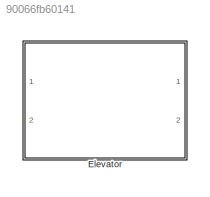
MODEL slx_90066fb60141
KIND library
CONFIG AbsTol = auto
CONFIG EnableMultiTasking = on
CONFIG FixedStep = 1
CONFIG MaxStep = auto
CONFIG MinStep = auto
CONFIG RelTol = 1e-3
CONFIG SampleTimeConstraint = Unconstrained
CONFIG Solver = FixedStepDiscrete
CONFIG SolverName = FixedStepDiscrete
CONFIG StartTime = 0.0
CONFIG StopTime = 10.0
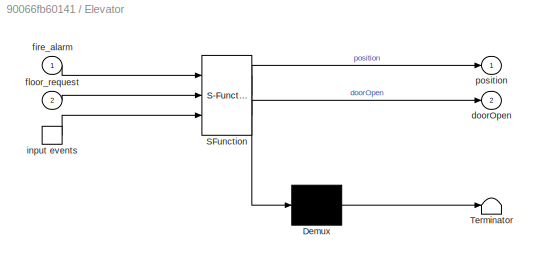
BLOCK [SubSystem] Elevator
  ErrorFcn = Stateflow.Translate.translate
  PermitHierarchicalResolution = ExplicitOnly
  Ports = [2, 2, 0, 1]
  RequestExecContextInheritance = off
  SFBlockType = Chart
  TreatAsAtomicUnit = on
  Variant = off
BLOCK [Demux] Elevator/ Demux 
  Outputs = 1
  Ports = [1, 1]
BLOCK [S-Function] Elevator/ SFunction 
  EnableBusSupport = off
  FunctionName = sf_sfun
  PortCounts = [3 3]
  Ports = [3, 3]
  SFcnIsStateOwnerBlock = off
  SFunctionDeploymentMode = off
  Tag = Stateflow S-Function sf_elevator_lib 2
BLOCK [Terminator] Elevator/ Terminator 
BLOCK [TriggerPort] Elevator/ input events 
  Ports = [0, 1]
  ShowOutputPort = on
  StatesWhenEnabling = held
  TriggerType = either
  VariantControl = (inherit)
BLOCK [Outport] Elevator/doorOpen
  IconDisplay = Port number
  Port = 2
BLOCK [Inport] Elevator/fire_alarm
  IconDisplay = Port number
BLOCK [Inport] Elevator/floor_request
  IconDisplay = Port number
  Port = 2
BLOCK [Outport] Elevator/position
  IconDisplay = Port number
CHART Elevator states=16 transitions=69
  STATE_LABEL 'Elevator'
  STATE_LABEL 'PickUpDropOff\nen: Main_deregister(cur_floor);\n      deregister(cur_floor);\n      direction = MOVE_IDLE;\n      doorOpen = 1;\n\ndu: Main_deregister(cur_floor);\n      deregister(cur_floor);\n\nex: doorOpen = 0;'
  STATE_LABEL 'Stopped'
  STATE_LABEL '[fire_alarm]{status = EMERG;\nresetTheElevatorCar();}\n/* Resets the timeout counter */'
  STATE_LABEL 'Idle\nen: status = IDLE;\nex: status = BUSY;'
  STATE_LABEL 'MoveToTask\ndu: move_to(task_queue[0]);'
  STATE_LABEL 'CAR_CALL  {register(floor_request);}'
  STATE_LABEL '{doorOpen = 0;}'
  STATE_LABEL 'after(TIME_OUT, CLOCK)'
  STATE_LABEL '[task_queue[0]]'
  STATE_LABEL '[task_queue[0]]'
  STATE_LABEL '[should_stop()]'
  STATE_LABEL 'PickUpDropOff\nen: Main_deregister(cur_floor);\n      deregister(cur_floor);\n      direction = MOVE_IDLE;\n      doorOpen = 1;\n\ndu: Main_deregister(cur_floor);\n      deregister(cur_floor);\n\nex: doorOpen = 0;'
  STATE_LABEL 'Stopped'
  STATE_LABEL '[fire_alarm]{status = EMERG;\nresetTheElevatorCar();}\n/* Resets the timeout counter */'
  STATE_LABEL 'Stopped'
  STATE_LABEL 'Idle\nen: status = IDLE;\nex: status = BUSY;'
  STATE_LABEL 'MoveToTask\ndu: move_to(task_queue[0]);'
  STATE_LABEL 'move_to(destination)'
  STATE_LABEL '{\n/* Move up */\nmove_up = (destination - position > ERR_TOR);\n}'
  STATE_LABEL '{\n/* Move down */\nmove_down = (position - destination > ERR_TOR);\n}'
  STATE_LABEL '[move_up && !move_down]'
  STATE_LABEL '{\n/* Move up */\nposition = position + VELOCITY;\ndirection = MOVE_UP;\n}'
  STATE_LABEL '[!move_up && move_down]'
  STATE_LABEL '{\n/* Move down */\nposition = position - VELOCITY;\ndirection = MOVE_DOWN;\n}'
  STATE_LABEL 'dir = get_direction'
  STATE_LABEL '{dir = direction;}'
  STATE_LABEL 'ans = should_stop'
  STATE_LABEL "{\n/* 'INIT':Initialization */\ncur_floor = ml_round(position);\n}"
  STATE_LABEL '{\n/* Fire Alarm */\nfire_alarm_on = (fire_alarm);\n}'
  STATE_LABEL '{\n/* Arrived destination */\nat_destination = (fabs(position - task_queue[0]) < ERR_TOR);\n}'
  STATE_LABEL '{\n/* Arrived at a floor */\nat_a_floor = (fabs(position - cur_floor) < ERR_TOR);\n}'
  STATE_LABEL '{\n/* There is car call to stop at this floor */\nrequest_from_car = (car_call_status[cur_floor]);\n}'
  STATE_LABEL '{\n/* There is hall call from this floor */\nrequest_from_hall = (hall_call_status[cur_floor]);\n}'
  STATE_LABEL '{\n/* This hall call is still outstanding in queue */\nthis_hall_call_outstanding = (Main_exists_in_queue(cur_floor));\n}'
  STATE_LABEL '[fire_alarm_on]'
  STATE_LABEL "{\n/* 'S':Should stop at this floor */\nposition = cur_floor; /* Adjust position */\nans = 1;\n}"
  STATE_LABEL '[at_destination]'
  STATE_LABEL "{\n/* 'S':Should stop at this floor */\nposition = cur_floor; /* Adjust position */\nans = 1;\n}"
  STATE_LABEL '[!at_a_floor]'
